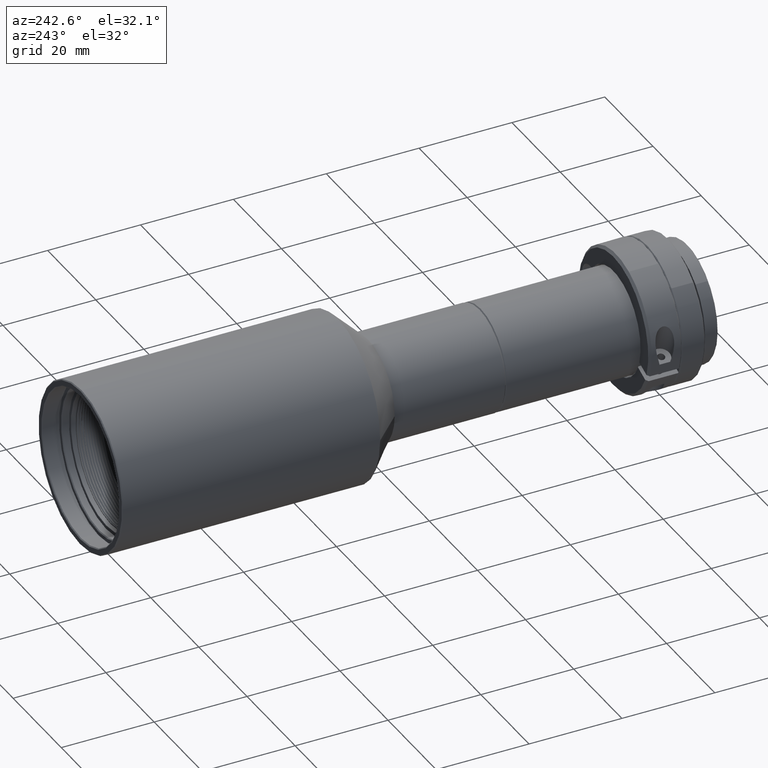
[diagram: clean part render]
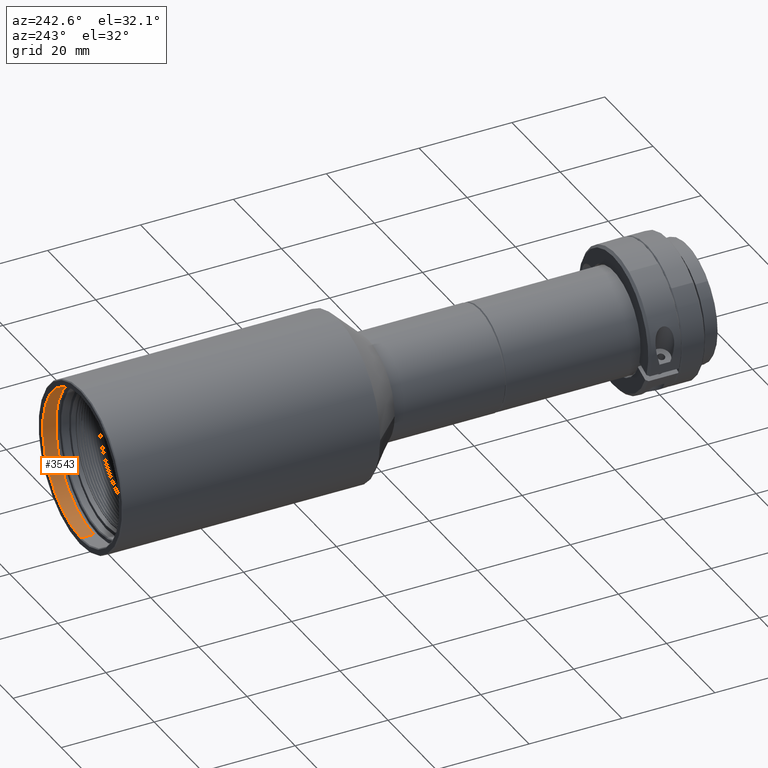
[diagram: same view with one face highlighted and labeled with its STEP entity id]
A machine part, auxiliary view. The second image highlights one B-rep face of the part: STEP entity #3543.
In plain terms, the highlighted cylindrical surface (partial cylindrical patch) has radius 16 mm, axis along (0, 1, 0).
Its self-contained STEP definition (entity closure, byte-faithful):
#68 = EDGE_CURVE ( 'NONE', #815, #945, #3123, .T. ) ;
#83 = DIRECTION ( 'NONE',  ( 0.000000000000000000, 1.000000000000000000, 0.000000000000000000 ) ) ;
#109 = DIRECTION ( 'NONE',  ( 0.000000000000000000, 1.000000000000000000, 0.000000000000000000 ) ) ;
#162 = ORIENTED_EDGE ( 'NONE', *, *, #3822, .T. ) ;
#322 = CARTESIAN_POINT ( 'NONE',  ( 8.250592294294199450E-16, 121.8000000000000114, 1.381180292636150134E-15 ) ) ;
#576 = DIRECTION ( 'NONE',  ( -0.01003568201483280055, 0.000000000000000000, 0.9999496412752479912 ) ) ;
#579 = VECTOR ( 'NONE', #4573, 1000.000000000000000 ) ;
#622 = ORIENTED_EDGE ( 'NONE', *, *, #888, .F. ) ;
#702 = LINE ( 'NONE', #2857, #579 ) ;
#727 = EDGE_LOOP ( 'NONE', ( #622, #2217, #934, #162 ) ) ;
#815 = VERTEX_POINT ( 'NONE', #2339 ) ;
#888 = EDGE_CURVE ( 'NONE', #2058, #4816, #702, .T. ) ;
#934 = ORIENTED_EDGE ( 'NONE', *, *, #68, .T. ) ;
#945 = VERTEX_POINT ( 'NONE', #5479 ) ;
#1321 = DIRECTION ( 'NONE',  ( -0.01003568201483280055, 0.000000000000000000, 0.9999496412752479912 ) ) ;
#1341 = CIRCLE ( 'NONE', #5630, 16.00000000000000000 ) ;
#1372 = DIRECTION ( 'NONE',  ( 0.000000000000000000, 1.000000000000000000, 0.000000000000000000 ) ) ;
#2058 = VERTEX_POINT ( 'NONE', #2615 ) ;
#2076 = DIRECTION ( 'NONE',  ( -0.01003568201483280055, 0.000000000000000000, 0.9999496412752479912 ) ) ;
#2209 = AXIS2_PLACEMENT_3D ( 'NONE', #3598, #1372, #1321 ) ;
#2217 = ORIENTED_EDGE ( 'NONE', *, *, #4628, .F. ) ;
#2339 = CARTESIAN_POINT ( 'NONE',  ( -0.1605709122373240039, 121.8000000000000114, 15.99919426040396786 ) ) ;
#2615 = CARTESIAN_POINT ( 'NONE',  ( 0.1605709122373276121, 121.8000000000000114, -15.99919426040396786 ) ) ;
#2754 = VECTOR ( 'NONE', #109, 1000.000000000000000 ) ;
#2857 = CARTESIAN_POINT ( 'NONE',  ( 0.1605709122373276121, 38.80000000000000426, -15.99919426040396786 ) ) ;
#2881 = DIRECTION ( 'NONE',  ( 0.000000000000000000, 1.000000000000000000, 0.000000000000000000 ) ) ;
#3123 = LINE ( 'NONE', #4029, #2754 ) ;
#3391 = CIRCLE ( 'NONE', #2209, 16.00000000000000355 ) ;
#3543 = ADVANCED_FACE ( 'NONE', ( #4978 ), #5323, .F. ) ;
#3598 = CARTESIAN_POINT ( 'NONE',  ( 8.250592294294199450E-16, 124.6000000000000085, 1.381180292636150134E-15 ) ) ;
#3822 = EDGE_CURVE ( 'NONE', #945, #4816, #3391, .T. ) ;
#4029 = CARTESIAN_POINT ( 'NONE',  ( -0.1605709122373240039, 38.80000000000000426, 15.99919426040396786 ) ) ;
#4573 = DIRECTION ( 'NONE',  ( 0.000000000000000000, 1.000000000000000000, 0.000000000000000000 ) ) ;
#4628 = EDGE_CURVE ( 'NONE', #815, #2058, #1341, .T. ) ;
#4644 = CARTESIAN_POINT ( 'NONE',  ( 0.1605709122373276398, 124.6000000000000085, -15.99919426040397141 ) ) ;
#4816 = VERTEX_POINT ( 'NONE', #4644 ) ;
#4845 = AXIS2_PLACEMENT_3D ( 'NONE', #4952, #83, #576 ) ;
#4952 = CARTESIAN_POINT ( 'NONE',  ( 8.250592294294199450E-16, 38.80000000000000426, 1.381180292636150134E-15 ) ) ;
#4978 = FACE_OUTER_BOUND ( 'NONE', #727, .T. ) ;
#5323 = CYLINDRICAL_SURFACE ( 'NONE', #4845, 16.00000000000000000 ) ;
#5479 = CARTESIAN_POINT ( 'NONE',  ( -0.1605709122373240316, 124.6000000000000085, 15.99919426040397141 ) ) ;
#5630 = AXIS2_PLACEMENT_3D ( 'NONE', #322, #2881, #2076 ) ;